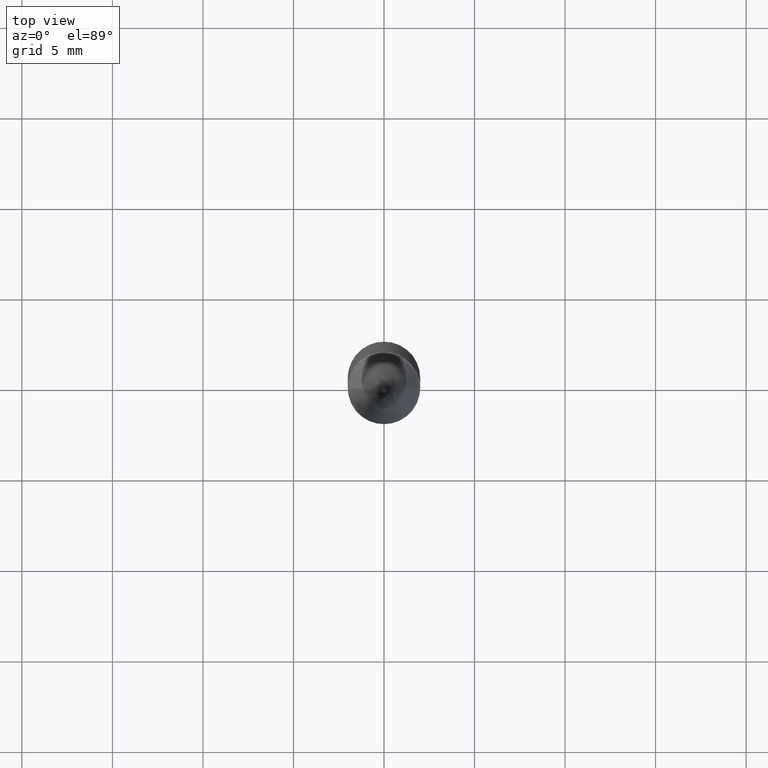
[diagram: clean part render]
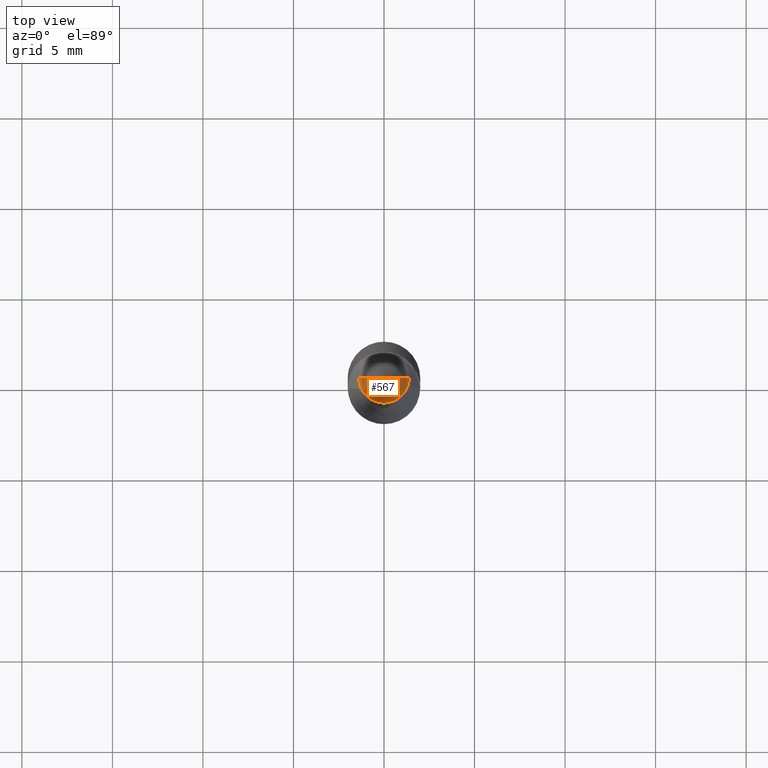
[diagram: same view with one face highlighted and labeled with its STEP entity id]
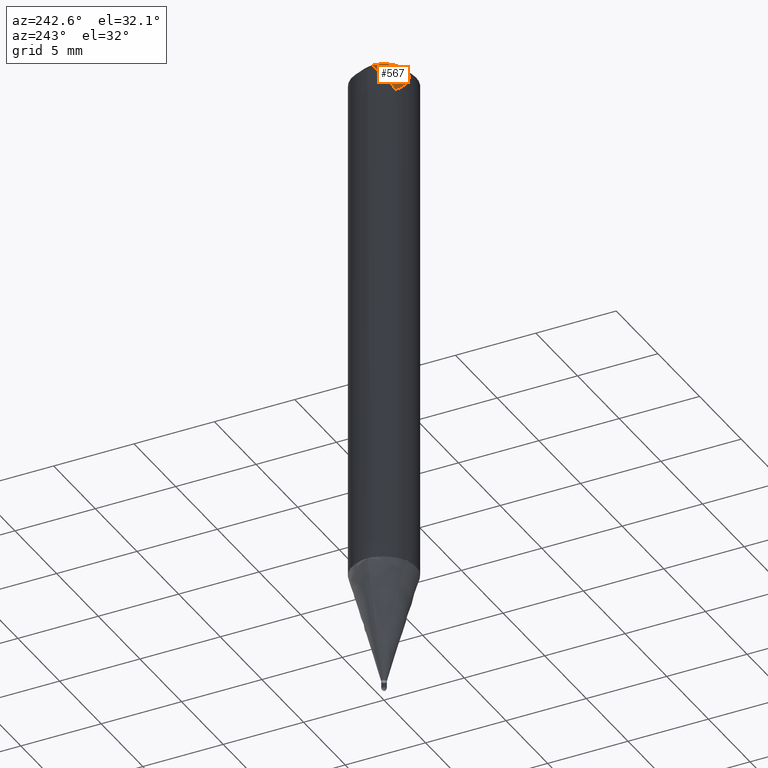
[diagram: same view with one face highlighted and labeled with its STEP entity id]
A machine part, top view. The second image highlights one B-rep face of the part: STEP entity #567.
A second angle (auxiliary view) of the same face is appended — the face is thin or edge-on in the first view.
In plain terms, the highlighted face is a freeform B-spline surface patch.
Its self-contained STEP definition (entity closure, byte-faithful):
#213=CARTESIAN_POINT('',(1.4,0.0,32.495));
#217=CARTESIAN_POINT('',(-1.4,0.0,32.495));
#218=CARTESIAN_POINT('',(0.0,0.0,32.495));
#228=CARTESIAN_POINT('',(-1.4,-1.4,32.495));
#229=CARTESIAN_POINT('',(0.0,-1.4,32.495));
#230=CARTESIAN_POINT('',(1.4,-1.4,32.495));
#552=(
BOUNDED_SURFACE()
B_SPLINE_SURFACE(1,2,(
(#217,#228,#229,#230,#213),
(#218,#218,#218,#218,#218)
), .UNSPECIFIED.,.F.,.F.,.F.)
B_SPLINE_SURFACE_WITH_KNOTS((2,2),(3,2,3),(
0.0,1.0),(
0.0,0.5,1.0), .UNSPECIFIED.)
GEOMETRIC_REPRESENTATION_ITEM()
RATIONAL_B_SPLINE_SURFACE(((1.0,0.707106781187,1.0,0.707106781187,1.0),
(1.0,0.707106781187,1.0,0.707106781187,1.0)
))
REPRESENTATION_ITEM('')
SURFACE()
);
#553=(
BOUNDED_CURVE()
B_SPLINE_CURVE(1,(#218,#213),.UNSPECIFIED.,.F.,.F.)
B_SPLINE_CURVE_WITH_KNOTS((2,2),
(0.0,1.0),.UNSPECIFIED.)
CURVE()
GEOMETRIC_REPRESENTATION_ITEM()
RATIONAL_B_SPLINE_CURVE((1.0,1.0))
REPRESENTATION_ITEM('')
);
#554=(
BOUNDED_CURVE()
B_SPLINE_CURVE(2,(#213,#230,#229,#228,#217),.UNSPECIFIED.,.F.,.F.)
B_SPLINE_CURVE_WITH_KNOTS((3,2,3),
(0.0,0.5,1.0),.UNSPECIFIED.)
CURVE()
GEOMETRIC_REPRESENTATION_ITEM()
RATIONAL_B_SPLINE_CURVE((1.0,0.707106781187,1.0,0.707106781187,1.0))
REPRESENTATION_ITEM('')
);
#555=(
BOUNDED_CURVE()
B_SPLINE_CURVE(1,(#217,#218),.UNSPECIFIED.,.F.,.F.)
B_SPLINE_CURVE_WITH_KNOTS((2,2),
(0.0,1.0),.UNSPECIFIED.)
CURVE()
GEOMETRIC_REPRESENTATION_ITEM()
RATIONAL_B_SPLINE_CURVE((1.0,1.0))
REPRESENTATION_ITEM('')
);
#556=VERTEX_POINT('',#213);
#557=VERTEX_POINT('',#217);
#558=VERTEX_POINT('',#218);
#559=EDGE_CURVE('',#558,#556,#553,.T.);
#560=EDGE_CURVE('',#556,#557,#554,.T.);
#561=EDGE_CURVE('',#557,#558,#555,.T.);
#562=ORIENTED_EDGE('',*,*,#559,.T.);
#563=ORIENTED_EDGE('',*,*,#560,.T.);
#564=ORIENTED_EDGE('',*,*,#561,.T.);
#565=EDGE_LOOP('',(#562,#563,#564));
#566=FACE_OUTER_BOUND('',#565,.T.);
#567=ADVANCED_FACE('',(#566),#552,.T.);